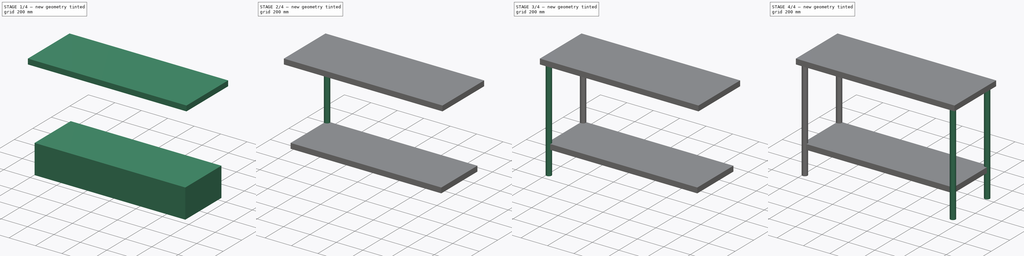
[diagram: build sequence overview — one tinted view per stage of 4, left to right]
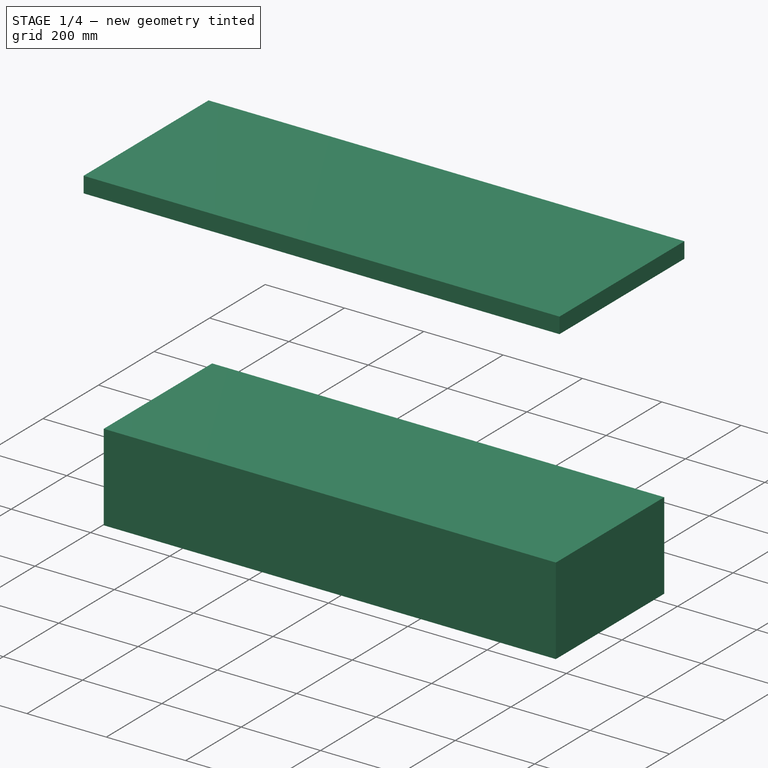
[diagram: stage 1 of 4 — iso view after this stage's code; geometry added in this stage tinted green]
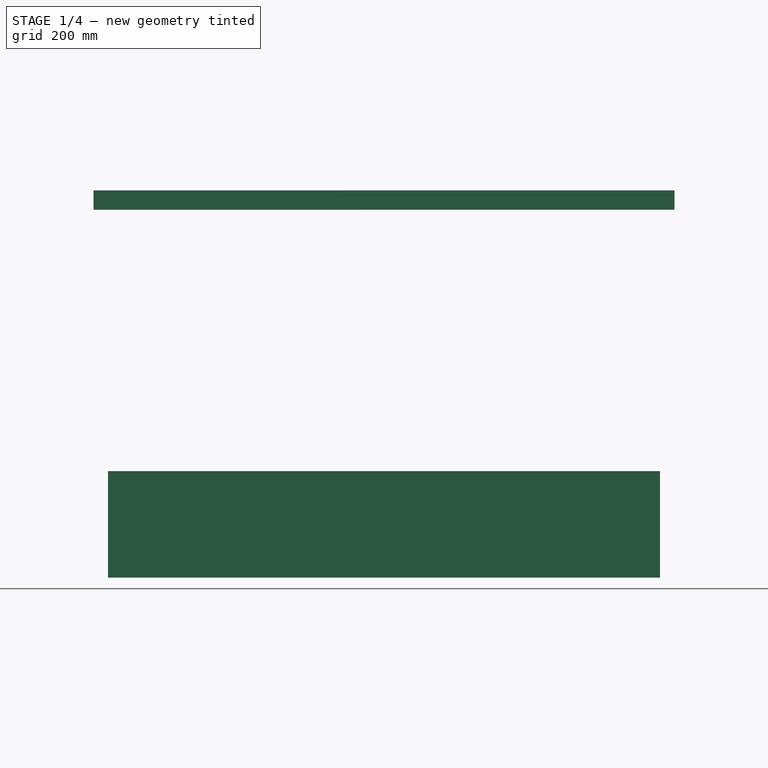
[diagram: stage 1 of 4 — front view after this stage's code; geometry added in this stage tinted green]
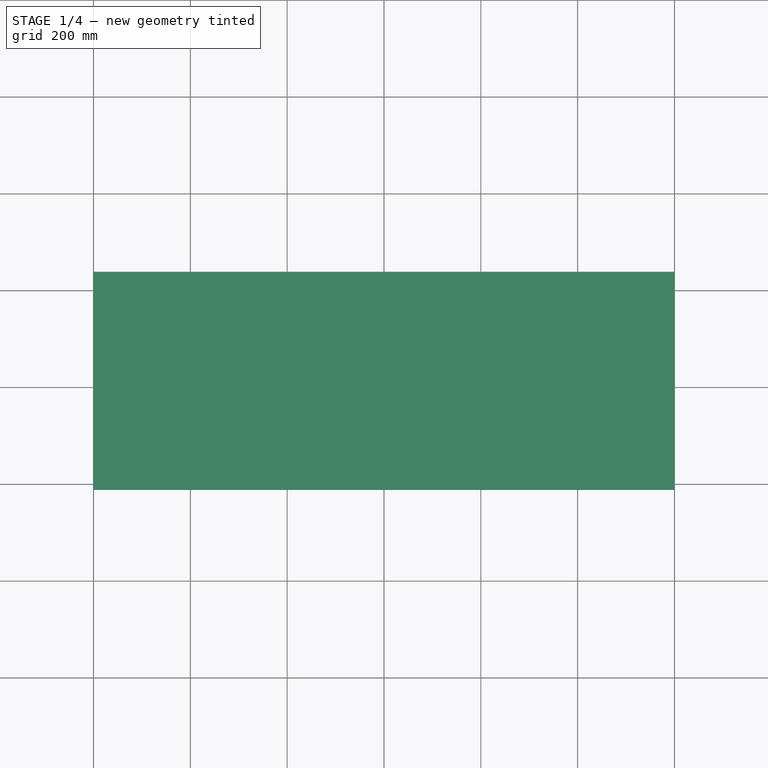
[diagram: stage 1 of 4 — top view after this stage's code; geometry added in this stage tinted green]
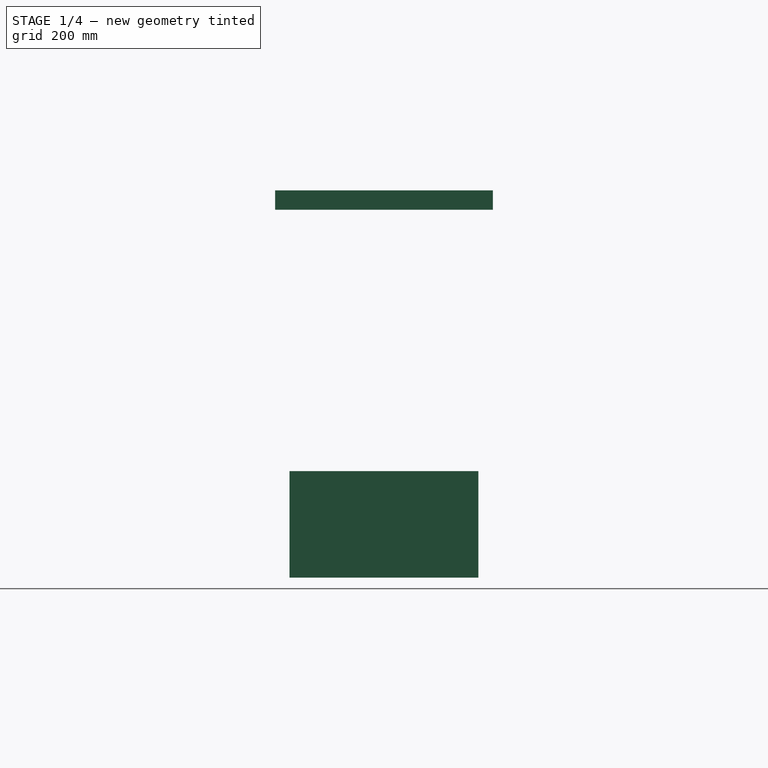
[diagram: stage 1 of 4 — right view after this stage's code; geometry added in this stage tinted green]
FCSTD DOCUMENT  (FreeCAD 1.0R39109 (Git))
Label: table02
License: All rights reserved
LicenseURL: https://en.wikipedia.org/wiki/All_rights_reserved
objects: Sketcher::SketchObject×8, PartDesign::Pad×6, PartDesign::Body×6, Part::FeaturePython×6, PartDesign::Pocket×2, App::Part×1
note: 52 computed .brp shape members not serialized (recipe doc carries the construction recipe); baked Part::Feature solids carry a one-line shape summary decoded from their .brp

FEATURE [PartDesign::Body] Body003
  AllowCompound = false
  Group = -> [Sketch003,Pad003]
  Origin = -> Origin003
  Tip = -> Pad003
FEATURE [Sketcher::SketchObject] Sketch004
  ArcFitTolerance = 1e-06
  AttachmentSupport = -> [XY_Plane004]
  FullyConstrained = false
  MakeInternals = false
  MapMode = 5
  sketch-geometry (20):
    g0: LineSegment [constr] StartX=-600 StartY=-225 StartZ=0 EndX=600 EndY=-225 EndZ=0
    g1: LineSegment [constr] StartX=600 StartY=-225 StartZ=0 EndX=600 EndY=225 EndZ=0
    g2: LineSegment [constr] StartX=600 StartY=225 StartZ=0 EndX=-600 EndY=225 EndZ=0
    g3: LineSegment [constr] StartX=-600 StartY=225 StartZ=0 EndX=-600 EndY=-225 EndZ=0
    g4: GeomPoint [constr] X=0 Y=0 Z=0
    g5: LineSegment [constr] StartX=-600 StartY=225 StartZ=0 EndX=-600 EndY=265 EndZ=0
    g6: LineSegment [constr] StartX=-600 StartY=265 StartZ=0 EndX=-560 EndY=265 EndZ=0
    g7: LineSegment [constr] StartX=-560 StartY=265 StartZ=0 EndX=-560 EndY=185 EndZ=0
    g8: LineSegment [constr] StartX=-600 StartY=-225 StartZ=0 EndX=-600 EndY=-265 EndZ=0
    g9: LineSegment [constr] StartX=-600 StartY=-265 StartZ=0 EndX=-560 EndY=-265 EndZ=0
    g10: LineSegment [constr] StartX=-560 StartY=-265 StartZ=0 EndX=-560 EndY=-185 EndZ=0
    g11: LineSegment [constr] StartX=-560 StartY=185 StartZ=0 EndX=-560 EndY=175 EndZ=0
    g12: LineSegment [constr] StartX=-560 StartY=175 StartZ=0 EndX=-570 EndY=175 EndZ=0
    g13: LineSegment [constr] StartX=-570 StartY=175 StartZ=0 EndX=-570 EndY=195 EndZ=0
    g14: LineSegment [constr] StartX=560 StartY=-185.063 StartZ=0 EndX=570 EndY=-185.063 EndZ=0
    g15: LineSegment [constr] StartX=570 StartY=-185.063 StartZ=0 EndX=570 EndY=-195.063 EndZ=0
    g16: LineSegment StartX=-570 StartY=195 StartZ=0 EndX=-570 EndY=-195.063 EndZ=0
    g17: LineSegment StartX=-570 StartY=-195.063 StartZ=0 EndX=570 EndY=-195.063 EndZ=0
    g18: LineSegment StartX=570 StartY=-195.063 StartZ=0 EndX=570 EndY=195 EndZ=0
    g19: LineSegment StartX=570 StartY=195 StartZ=0 EndX=-570 EndY=195 EndZ=0
  constraints (54):
    c: Coincident(g0,g1)
    c: Coincident(g1,g2)
    c: Coincident(g2,g3)
    c: Coincident(g3,g0)
    c: Horizontal(g0)
    c: Horizontal(g2)
    c: Vertical(g1)
    c: Vertical(g3)
    c: Symmetric(g2,g0,g4)
    c: Distance(g1,g3) = 1200
    c: Distance(g0,g2) = 450
    c: Coincident(g4,g-1)
    c: Coincident(g5,g2)
    c: Vertical(g5)
    c: DistanceY(g5,g5) = 40
    c: Distance(g6) = 40
    c: Coincident(g6,g5)
    c: Horizontal(g6)
    c: Distance(g7) = 80
    c: Coincident(g7,g6)
    c: Vertical(g7)
    c: Distance(g8) = 40
    c: Coincident(g8,g0)
    c: Vertical(g8)
    c: Distance(g9) = 40
    c: Coincident(g9,g8)
    c: Horizontal(g9)
    c: Distance(g10) = 80
    c: Coincident(g10,g9)
    c: Vertical(g10)
    c: Distance(g11) = 10
    c: Coincident(g11,g7)
    c: Vertical(g11)
    c: Distance(g12) = 10
    c: Coincident(g12,g11)
    c: Horizontal(g12)
    c: Distance(g13) = 20
    c: Coincident(g13,g12)
    c: Vertical(g13)
    c: Distance(g14) = 10
    c: Horizontal(g14)
    c: Distance(g15) = 10
    c: Coincident(g15,g14)
    c: Vertical(g15)
    c: Coincident(g16,g17)
    c: Coincident(g17,g18)
    c: Coincident(g18,g19)
    c: Coincident(g19,g16)
    c: Vertical(g16)
    c: Vertical(g18)
    c: Horizontal(g17)
    c: Horizontal(g19)
    c: Coincident(g16,g13)
    c: Coincident(g17,g15)
FEATURE [PartDesign::Pad] Pad004
  Direction = (0,0,1)
  Length = 220
  Length2 = 10
  Profile = -> Sketch004
  ReferenceAxis = -> Sketch004 [N_Axis]
  Refine = true
  Suppressed = false
  Type = 0
FEATURE [PartDesign::Body] Body004
  AllowCompound = false
  Group = -> [Sketch004,Pad004,Sketch005,Pocket]
  Origin = -> Origin004
  Tip = -> Pocket
FEATURE [Sketcher::SketchObject] Sketch006
  ArcFitTolerance = 1e-06
  AttachmentSupport = -> [XY_Plane005]
  FullyConstrained = false
  MakeInternals = false
  MapMode = 5
  sketch-geometry (16):
    g0: LineSegment StartX=-600 StartY=-225 StartZ=0 EndX=600 EndY=-225 EndZ=0
    g1: LineSegment StartX=600 StartY=-225 StartZ=0 EndX=600 EndY=225 EndZ=0
    g2: LineSegment StartX=600 StartY=225 StartZ=0 EndX=-600 EndY=225 EndZ=0
    g3: LineSegment StartX=-600 StartY=225 StartZ=0 EndX=-600 EndY=-225 EndZ=0
    g4: GeomPoint [constr] X=0 Y=0 Z=0
    g5: LineSegment [constr] StartX=-600 StartY=225 StartZ=0 EndX=-600 EndY=265 EndZ=0
    g6: LineSegment [constr] StartX=-600 StartY=265 StartZ=0 EndX=-560 EndY=265 EndZ=0
    g7: LineSegment [constr] StartX=-560 StartY=265 StartZ=0 EndX=-560 EndY=185 EndZ=0
    g8: LineSegment [constr] StartX=-600 StartY=-225 StartZ=0 EndX=-600 EndY=-265 EndZ=0
    g9: LineSegment [constr] StartX=-600 StartY=-265 StartZ=0 EndX=-560 EndY=-265 EndZ=0
    g10: LineSegment [constr] StartX=-560 StartY=-265 StartZ=0 EndX=-560 EndY=-185 EndZ=0
    g11: LineSegment [constr] StartX=-560 StartY=185 StartZ=0 EndX=-560 EndY=175 EndZ=0
    g12: LineSegment [constr] StartX=-560 StartY=175 StartZ=0 EndX=-570 EndY=175 EndZ=0
    g13: LineSegment [constr] StartX=-570 StartY=175 StartZ=0 EndX=-570 EndY=195 EndZ=0
    g14: LineSegment [constr] StartX=560 StartY=-185.063 StartZ=0 EndX=570 EndY=-185.063 EndZ=0
    g15: LineSegment [constr] StartX=570 StartY=-185.063 StartZ=0 EndX=570 EndY=-195.063 EndZ=0
  constraints (44):
    c: Coincident(g0,g1)
    c: Coincident(g1,g2)
    c: Coincident(g2,g3)
    c: Coincident(g3,g0)
    c: Horizontal(g0)
    c: Horizontal(g2)
    c: Vertical(g1)
    c: Vertical(g3)
    c: Symmetric(g2,g0,g4)
    c: Distance(g1,g3) = 1200
    c: Distance(g0,g2) = 450
    c: Coincident(g4,g-1)
    c: Coincident(g5,g2)
    c: Vertical(g5)
    c: DistanceY(g5,g5) = 40
    c: Distance(g6) = 40
    c: Coincident(g6,g5)
    c: Horizontal(g6)
    c: Distance(g7) = 80
    c: Coincident(g7,g6)
    c: Vertical(g7)
    c: Distance(g8) = 40
    c: Coincident(g8,g0)
    c: Vertical(g8)
    c: Distance(g9) = 40
    c: Coincident(g9,g8)
    c: Horizontal(g9)
    c: Distance(g10) = 80
    c: Coincident(g10,g9)
    c: Vertical(g10)
    c: Distance(g11) = 10
    c: Coincident(g11,g7)
    c: Vertical(g11)
    c: Distance(g12) = 10
    c: Coincident(g12,g11)
    c: Horizontal(g12)
    c: Distance(g13) = 20
    c: Coincident(g13,g12)
    c: Vertical(g13)
    c: Distance(g14) = 10
    c: Horizontal(g14)
    c: Distance(g15) = 10
    c: Coincident(g15,g14)
    c: Vertical(g15)
FEATURE [PartDesign::Pad] Pad005
  Direction = (0,0,1)
  Length = 800
  Length2 = 10
  Profile = -> Sketch006
  ReferenceAxis = -> Sketch006 [N_Axis]
  Refine = true
  Suppressed = false
  Type = 0
FEATURE [Sketcher::SketchObject] Sketch007
  ArcFitTolerance = 1e-06
  AttachmentSupport = -> [Pad005]
  ExternalGeometry = -> [Pad005]
  FullyConstrained = true
  MakeInternals = false
  MapMode = 5
  Placement = pos=(0,0,0) rot=(1,0,0;3.14159rad)
  sketch-geometry (4):
    g0: LineSegment StartX=-600 StartY=225 StartZ=0 EndX=-600 EndY=-225 EndZ=0
    g1: LineSegment StartX=-600 StartY=-225 StartZ=0 EndX=600 EndY=-225 EndZ=0
    g2: LineSegment StartX=600 StartY=-225 StartZ=0 EndX=600 EndY=225 EndZ=0
    g3: LineSegment StartX=600 StartY=225 StartZ=0 EndX=-600 EndY=225 EndZ=0
  constraints (10):
    c: Coincident(g0,g1)
    c: Coincident(g1,g2)
    c: Coincident(g2,g3)
    c: Coincident(g3,g0)
    c: Vertical(g0)
    c: Vertical(g2)
    c: Horizontal(g1)
    c: Horizontal(g3)
    c: Coincident(g0,g-3)
    c: Coincident(g1,g-4)
FEATURE [PartDesign::Pocket] Pocket001
  BaseFeature = -> Pad005
  Direction = (0,0,1)
  Length = 760
  Length2 = 5
  Profile = -> Sketch007
  ReferenceAxis = -> Sketch007 [N_Axis]
  Refine = true
  Suppressed = false
  Type = 0
FEATURE [Part::FeaturePython] Clone005  label="plate2_clone"  # Draft clone (typed FeaturePython)
  AttacherType = Attacher::AttachEngine3D
  Fuse = false
  Objects = -> [Body005]
  Scale = (1,1,1)
FEATURE [App::Part] Part  label="table02"
  Group = -> [Clone,Clone001,Clone002,Clone003,Clone004,Clone005]
  Origin = -> Origin006
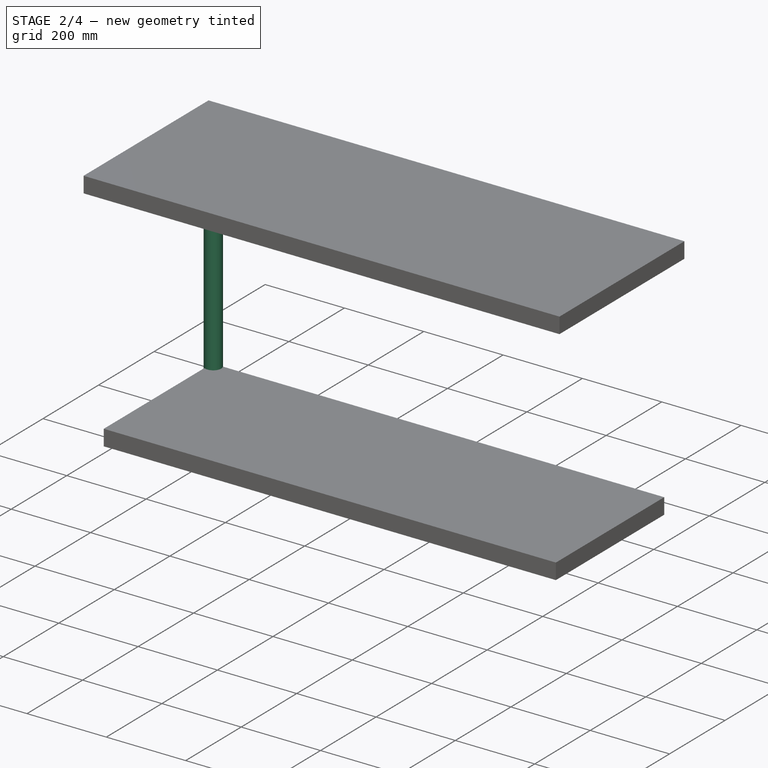
[diagram: stage 2 of 4 — iso view after this stage's code; geometry added in this stage tinted green]
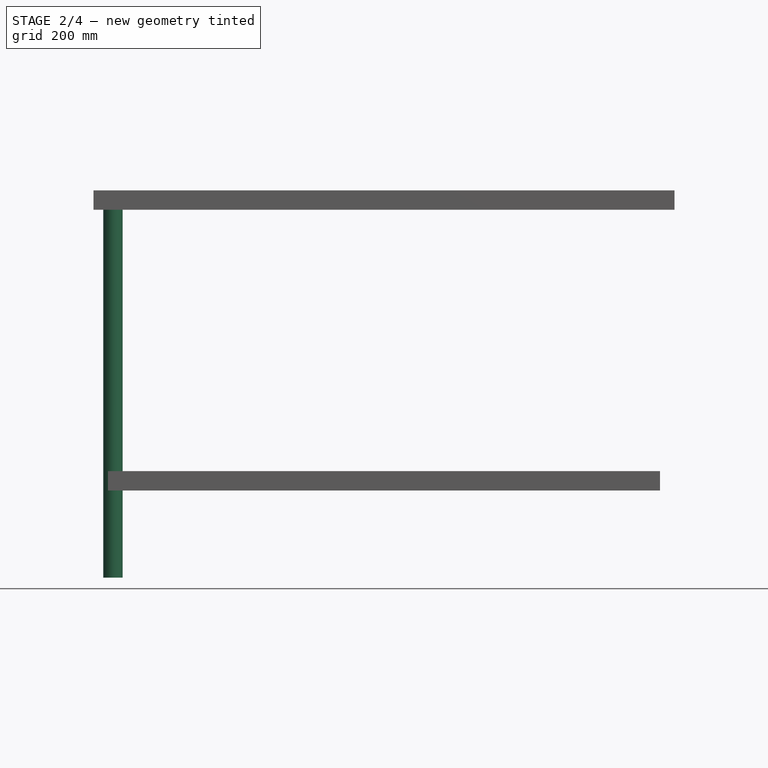
[diagram: stage 2 of 4 — front view after this stage's code; geometry added in this stage tinted green]
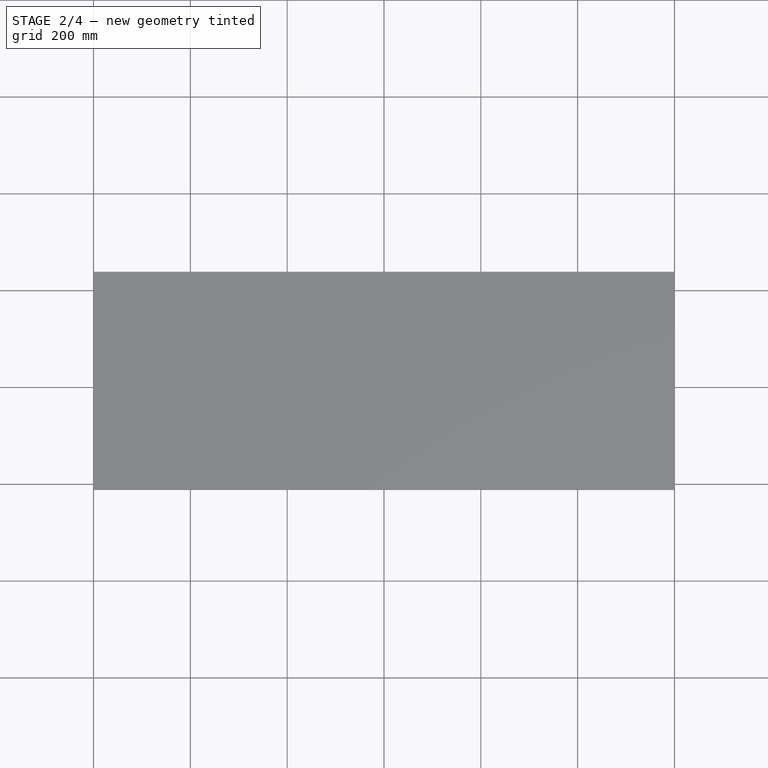
[diagram: stage 2 of 4 — top view after this stage's code; geometry added in this stage tinted green]
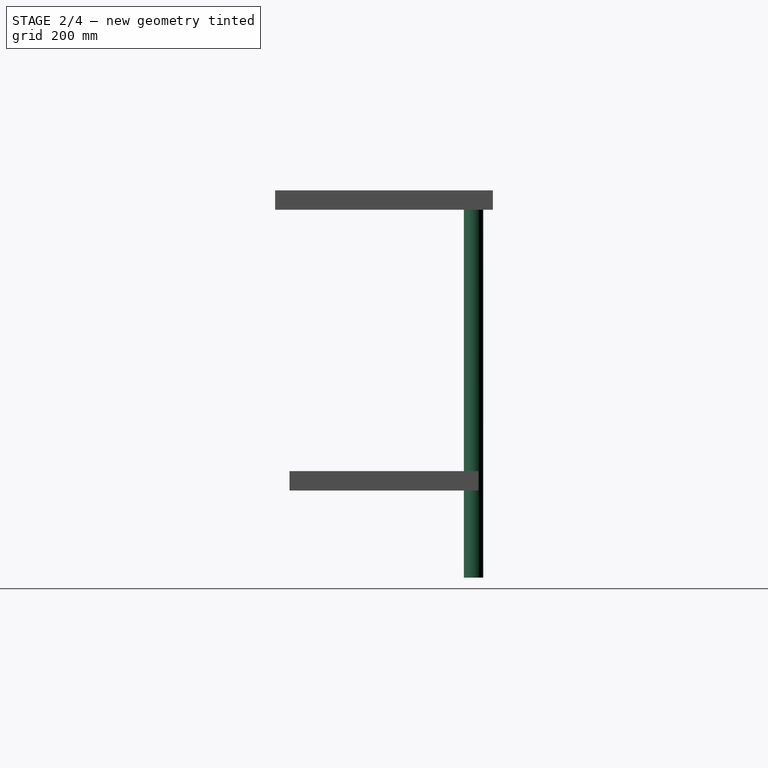
[diagram: stage 2 of 4 — right view after this stage's code; geometry added in this stage tinted green]
FEATURE [PartDesign::Body] Body002
  AllowCompound = false
  Group = -> [Sketch002,Pad002]
  Origin = -> Origin002
  Tip = -> Pad002
FEATURE [Sketcher::SketchObject] Sketch003
  ArcFitTolerance = 1e-06
  AttachmentSupport = -> [XY_Plane003]
  FullyConstrained = false
  MakeInternals = false
  MapMode = 5
  sketch-geometry (21):
    g0: LineSegment [constr] StartX=-600 StartY=-225 StartZ=0 EndX=600 EndY=-225 EndZ=0
    g1: LineSegment [constr] StartX=600 StartY=-225 StartZ=0 EndX=600 EndY=225 EndZ=0
    g2: LineSegment [constr] StartX=600 StartY=225 StartZ=0 EndX=-600 EndY=225 EndZ=0
    g3: LineSegment [constr] StartX=-600 StartY=225 StartZ=0 EndX=-600 EndY=-225 EndZ=0
    g4: GeomPoint [constr] X=0 Y=0 Z=0
    g5: LineSegment [constr] StartX=-600 StartY=225 StartZ=0 EndX=-600 EndY=265 EndZ=0
    g6: LineSegment [constr] StartX=-600 StartY=265 StartZ=0 EndX=-560 EndY=265 EndZ=0
    g7: LineSegment [constr] StartX=-560 StartY=265 StartZ=0 EndX=-560 EndY=185 EndZ=0
    g8: Circle CenterX=-560 CenterY=185 CenterZ=0 NormalX=0 NormalY=0 NormalZ=1 AngleXU=0 Radius=20
    g9: LineSegment [constr] StartX=-600 StartY=-225 StartZ=0 EndX=-600 EndY=-265 EndZ=0
    g10: LineSegment [constr] StartX=-600 StartY=-265 StartZ=0 EndX=-560 EndY=-265 EndZ=0
    g11: LineSegment [constr] StartX=-560 StartY=-265 StartZ=0 EndX=-560 EndY=-185 EndZ=0
    g12: LineSegment [constr] StartX=-560 StartY=185 StartZ=0 EndX=-560 EndY=175 EndZ=0
    g13: LineSegment [constr] StartX=-560 StartY=175 StartZ=0 EndX=-570 EndY=175 EndZ=0
    g14: LineSegment [constr] StartX=-570 StartY=175 StartZ=0 EndX=-570 EndY=195 EndZ=0
    g15: LineSegment [constr] StartX=560 StartY=-185.063 StartZ=0 EndX=570 EndY=-185.063 EndZ=0
    g16: LineSegment [constr] StartX=570 StartY=-185.063 StartZ=0 EndX=570 EndY=-195.063 EndZ=0
    g17: LineSegment [constr] StartX=-570 StartY=195 StartZ=0 EndX=-570 EndY=-195.063 EndZ=0
    g18: LineSegment [constr] StartX=-570 StartY=-195.063 StartZ=0 EndX=570 EndY=-195.063 EndZ=0
    g19: LineSegment [constr] StartX=570 StartY=-195.063 StartZ=0 EndX=570 EndY=195 EndZ=0
    g20: LineSegment [constr] StartX=570 StartY=195 StartZ=0 EndX=-570 EndY=195 EndZ=0
  constraints (56):
    c: Coincident(g0,g1)
    c: Coincident(g1,g2)
    c: Coincident(g2,g3)
    c: Coincident(g3,g0)
    c: Horizontal(g0)
    c: Horizontal(g2)
    c: Vertical(g1)
    c: Vertical(g3)
    c: Symmetric(g2,g0,g4)
    c: Distance(g1,g3) = 1200
    c: Distance(g0,g2) = 450
    c: Coincident(g4,g-1)
    c: Coincident(g5,g2)
    c: Vertical(g5)
    c: DistanceY(g5,g5) = 40
    c: Distance(g6) = 40
    c: Coincident(g6,g5)
    c: Horizontal(g6)
    c: Distance(g7) = 80
    c: Coincident(g7,g6)
    c: Vertical(g7)
    c: Diameter(g8) = 40
    c: Coincident(g8,g7)
    c: Distance(g9) = 40
    c: Coincident(g9,g0)
    c: Vertical(g9)
    c: Distance(g10) = 40
    c: Coincident(g10,g9)
    c: Horizontal(g10)
    c: Distance(g11) = 80
    c: Coincident(g11,g10)
    c: Vertical(g11)
    c: Distance(g12) = 10
    c: Coincident(g12,g7)
    c: Vertical(g12)
    c: Distance(g13) = 10
    c: Coincident(g13,g12)
    c: Horizontal(g13)
    c: Distance(g14) = 20
    c: Coincident(g14,g13)
    c: Vertical(g14)
    c: Distance(g15) = 10
    c: Horizontal(g15)
    c: Distance(g16) = 10
    c: Coincident(g16,g15)
    c: Vertical(g16)
    c: Coincident(g17,g18)
    c: Coincident(g18,g19)
    c: Coincident(g19,g20)
    c: Coincident(g20,g17)
    c: Vertical(g17)
    c: Vertical(g19)
    c: Horizontal(g18)
    c: Horizontal(g20)
    c: Coincident(g17,g14)
    c: Coincident(g18,g16)
FEATURE [PartDesign::Pad] Pad003
  Direction = (0,0,1)
  Length = 780
  Length2 = 10
  Profile = -> Sketch003
  ReferenceAxis = -> Sketch003 [N_Axis]
  Refine = true
  Suppressed = false
  Type = 0
FEATURE [Sketcher::SketchObject] Sketch005
  ArcFitTolerance = 1e-06
  AttachmentSupport = -> [Pad004]
  ExternalGeometry = -> [Pad004]
  FullyConstrained = true
  MakeInternals = false
  MapMode = 5
  Placement = pos=(0,0,0) rot=(1,0,0;3.14159rad)
  sketch-geometry (4):
    g0: LineSegment StartX=-570 StartY=195.063 StartZ=0 EndX=-570 EndY=-195 EndZ=0
    g1: LineSegment StartX=-570 StartY=-195 StartZ=0 EndX=570 EndY=-195 EndZ=0
    g2: LineSegment StartX=570 StartY=-195 StartZ=0 EndX=570 EndY=195.063 EndZ=0
    g3: LineSegment StartX=570 StartY=195.063 StartZ=0 EndX=-570 EndY=195.063 EndZ=0
  constraints (10):
    c: Coincident(g0,g1)
    c: Coincident(g1,g2)
    c: Coincident(g2,g3)
    c: Coincident(g3,g0)
    c: Vertical(g0)
    c: Vertical(g2)
    c: Horizontal(g1)
    c: Horizontal(g3)
    c: Coincident(g0,g-3)
    c: Coincident(g1,g-4)
FEATURE [PartDesign::Pocket] Pocket
  BaseFeature = -> Pad004
  Direction = (0,0,1)
  Length = 180
  Length2 = 5
  Profile = -> Sketch005
  ReferenceAxis = -> Sketch005 [N_Axis]
  Refine = true
  Suppressed = false
  Type = 0
FEATURE [Part::FeaturePython] Clone004  label="plate1_clone"  # Draft clone (typed FeaturePython)
  AttacherType = Attacher::AttachEngine3D
  Fuse = false
  Objects = -> [Body004]
  Scale = (1,1,1)
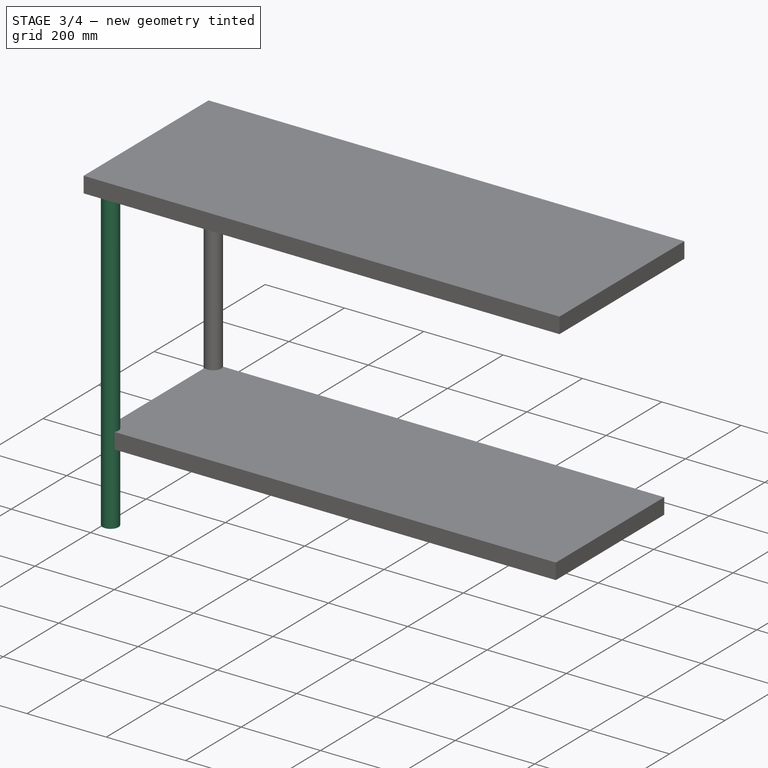
[diagram: stage 3 of 4 — iso view after this stage's code; geometry added in this stage tinted green]
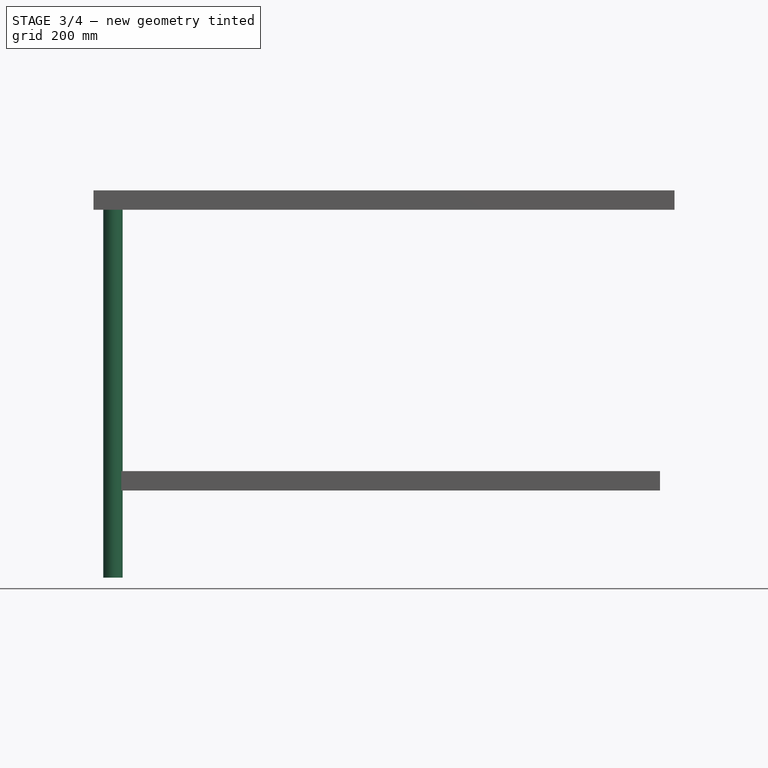
[diagram: stage 3 of 4 — front view after this stage's code; geometry added in this stage tinted green]
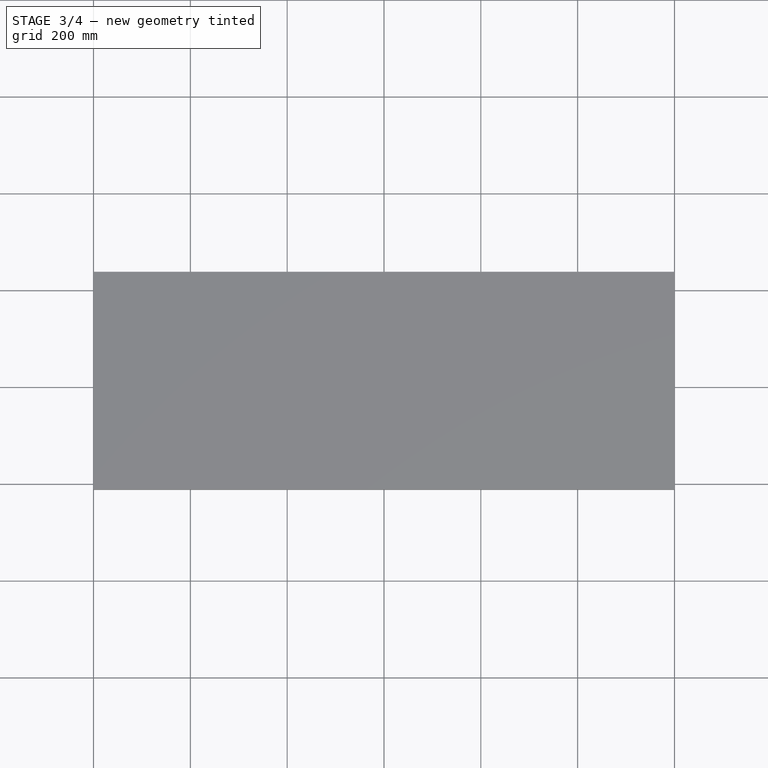
[diagram: stage 3 of 4 — top view after this stage's code; geometry added in this stage tinted green]
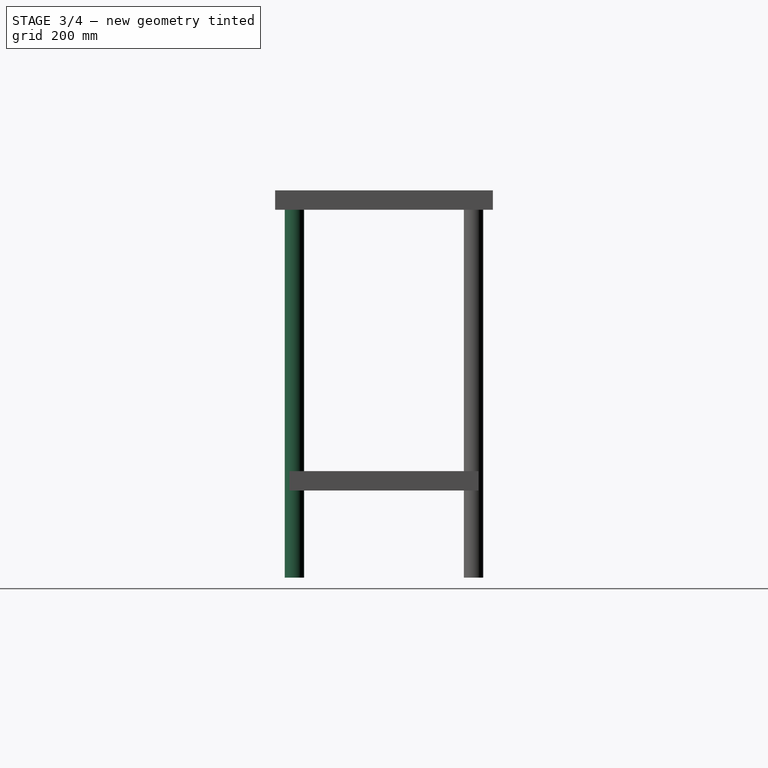
[diagram: stage 3 of 4 — right view after this stage's code; geometry added in this stage tinted green]
FEATURE [PartDesign::Body] Body001
  AllowCompound = false
  Group = -> [Sketch001,Pad001]
  Origin = -> Origin001
  Tip = -> Pad001
FEATURE [Sketcher::SketchObject] Sketch002
  ArcFitTolerance = 1e-06
  AttachmentSupport = -> [XY_Plane002]
  FullyConstrained = false
  MakeInternals = false
  MapMode = 5
  sketch-geometry (22):
    g0: LineSegment [constr] StartX=-600 StartY=-225 StartZ=0 EndX=600 EndY=-225 EndZ=0
    g1: LineSegment [constr] StartX=600 StartY=-225 StartZ=0 EndX=600 EndY=225 EndZ=0
    g2: LineSegment [constr] StartX=600 StartY=225 StartZ=0 EndX=-600 EndY=225 EndZ=0
    g3: LineSegment [constr] StartX=-600 StartY=225 StartZ=0 EndX=-600 EndY=-225 EndZ=0
    g4: GeomPoint [constr] X=0 Y=0 Z=0
    g5: LineSegment [constr] StartX=-600 StartY=225 StartZ=0 EndX=-600 EndY=265 EndZ=0
    g6: LineSegment [constr] StartX=-600 StartY=265 StartZ=0 EndX=-560 EndY=265 EndZ=0
    g7: LineSegment [constr] StartX=-560 StartY=265 StartZ=0 EndX=-560 EndY=185 EndZ=0
    g8: Circle CenterX=-560 CenterY=185 CenterZ=0 NormalX=0 NormalY=0 NormalZ=1 AngleXU=0 Radius=20
    g9: LineSegment [constr] StartX=-600 StartY=-225 StartZ=0 EndX=-600 EndY=-265 EndZ=0
    g10: LineSegment [constr] StartX=-600 StartY=-265 StartZ=0 EndX=-560 EndY=-265 EndZ=0
    g11: LineSegment [constr] StartX=-560 StartY=-265 StartZ=0 EndX=-560 EndY=-185 EndZ=0
    g12: Circle CenterX=-560 CenterY=-185 CenterZ=0 NormalX=0 NormalY=0 NormalZ=1 AngleXU=0 Radius=20
    g13: LineSegment [constr] StartX=-560 StartY=185 StartZ=0 EndX=-560 EndY=175 EndZ=0
    g14: LineSegment [constr] StartX=-560 StartY=175 StartZ=0 EndX=-570 EndY=175 EndZ=0
    g15: LineSegment [constr] StartX=-570 StartY=175 StartZ=0 EndX=-570 EndY=195 EndZ=0
    g16: LineSegment [constr] StartX=560 StartY=-185.063 StartZ=0 EndX=570 EndY=-185.063 EndZ=0
    g17: LineSegment [constr] StartX=570 StartY=-185.063 StartZ=0 EndX=570 EndY=-195.063 EndZ=0
    g18: LineSegment [constr] StartX=-570 StartY=195 StartZ=0 EndX=-570 EndY=-195.063 EndZ=0
    g19: LineSegment [constr] StartX=-570 StartY=-195.063 StartZ=0 EndX=570 EndY=-195.063 EndZ=0
    g20: LineSegment [constr] StartX=570 StartY=-195.063 StartZ=0 EndX=570 EndY=195 EndZ=0
    g21: LineSegment [constr] StartX=570 StartY=195 StartZ=0 EndX=-570 EndY=195 EndZ=0
  constraints (58):
    c: Coincident(g0,g1)
    c: Coincident(g1,g2)
    c: Coincident(g2,g3)
    c: Coincident(g3,g0)
    c: Horizontal(g0)
    c: Horizontal(g2)
    c: Vertical(g1)
    c: Vertical(g3)
    c: Symmetric(g2,g0,g4)
    c: Distance(g1,g3) = 1200
    c: Distance(g0,g2) = 450
    c: Coincident(g4,g-1)
    c: Coincident(g5,g2)
    c: Vertical(g5)
    c: DistanceY(g5,g5) = 40
    c: Distance(g6) = 40
    c: Coincident(g6,g5)
    c: Horizontal(g6)
    c: Distance(g7) = 80
    c: Coincident(g7,g6)
    c: Vertical(g7)
    c: Diameter(g8) = 40
    c: Coincident(g8,g7)
    c: Distance(g9) = 40
    c: Coincident(g9,g0)
    c: Vertical(g9)
    c: Distance(g10) = 40
    c: Coincident(g10,g9)
    c: Horizontal(g10)
    c: Distance(g11) = 80
    c: Coincident(g11,g10)
    c: Vertical(g11)
    c: Diameter(g12) = 40
    c: Coincident(g12,g11)
    c: Distance(g13) = 10
    c: Coincident(g13,g7)
    c: Vertical(g13)
    c: Distance(g14) = 10
    c: Coincident(g14,g13)
    c: Horizontal(g14)
    c: Distance(g15) = 20
    c: Coincident(g15,g14)
    c: Vertical(g15)
    c: Distance(g16) = 10
    c: Horizontal(g16)
    c: Distance(g17) = 10
    c: Coincident(g17,g16)
    c: Vertical(g17)
    c: Coincident(g18,g19)
    c: Coincident(g19,g20)
    c: Coincident(g20,g21)
    c: Coincident(g21,g18)
    c: Vertical(g18)
    c: Vertical(g20)
    c: Horizontal(g19)
    c: Horizontal(g21)
    c: Coincident(g18,g15)
    c: Coincident(g19,g17)
FEATURE [PartDesign::Pad] Pad002
  Direction = (0,0,1)
  Length = 780
  Length2 = 10
  Profile = -> Sketch002
  ReferenceAxis = -> Sketch002 [N_Axis]
  Refine = true
  Suppressed = false
  Type = 0
FEATURE [Part::FeaturePython] Clone002  label="foot3_clone"  # Draft clone (typed FeaturePython)
  AttacherType = Attacher::AttachEngine3D
  Fuse = false
  Objects = -> [Body002]
  Scale = (1,1,1)
FEATURE [Part::FeaturePython] Clone003  label="foot4_clone"  # Draft clone (typed FeaturePython)
  AttacherType = Attacher::AttachEngine3D
  Fuse = false
  Objects = -> [Body003]
  Scale = (1,1,1)
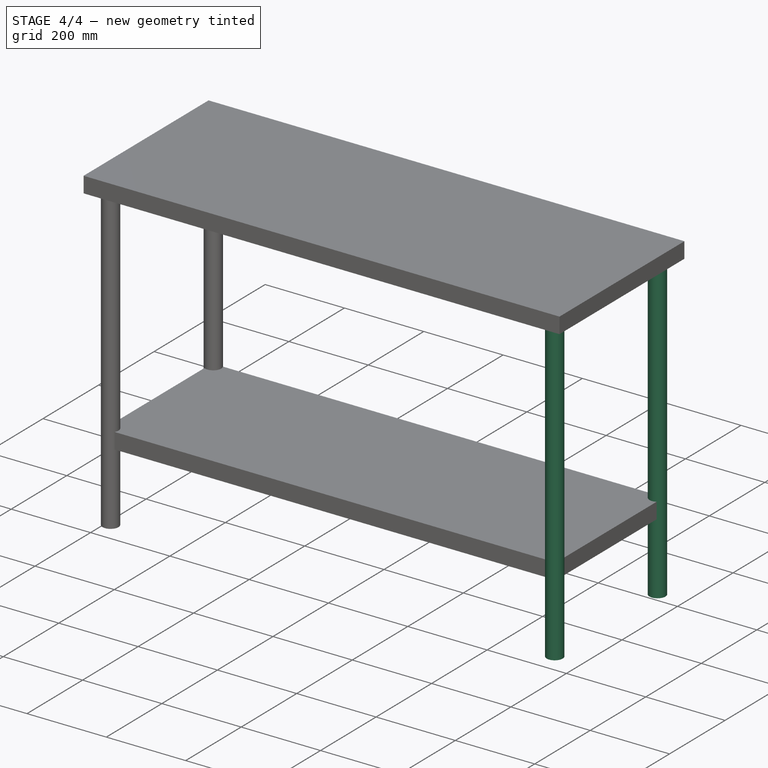
[diagram: stage 4 of 4 — iso view after this stage's code; geometry added in this stage tinted green]
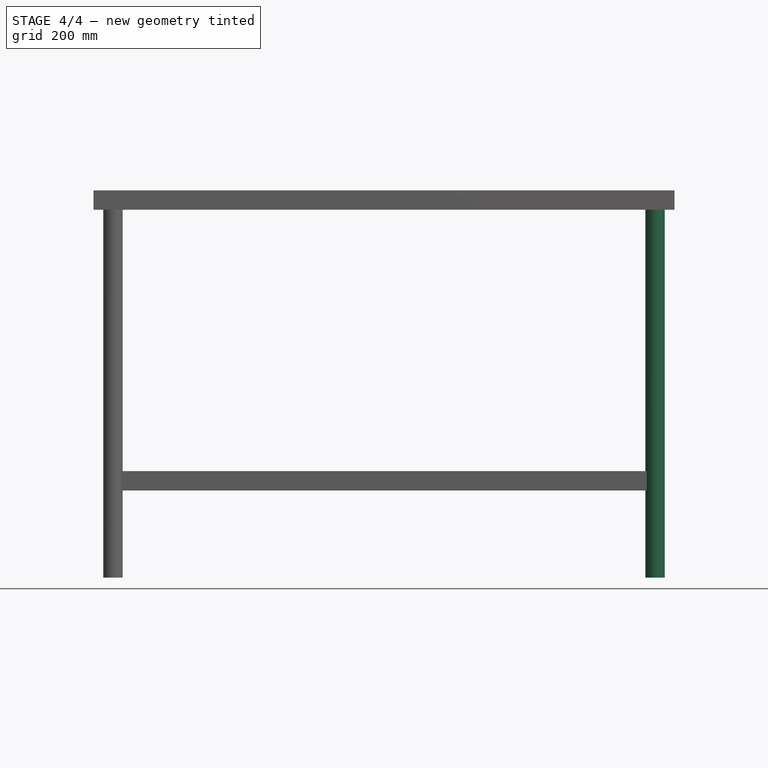
[diagram: stage 4 of 4 — front view after this stage's code; geometry added in this stage tinted green]
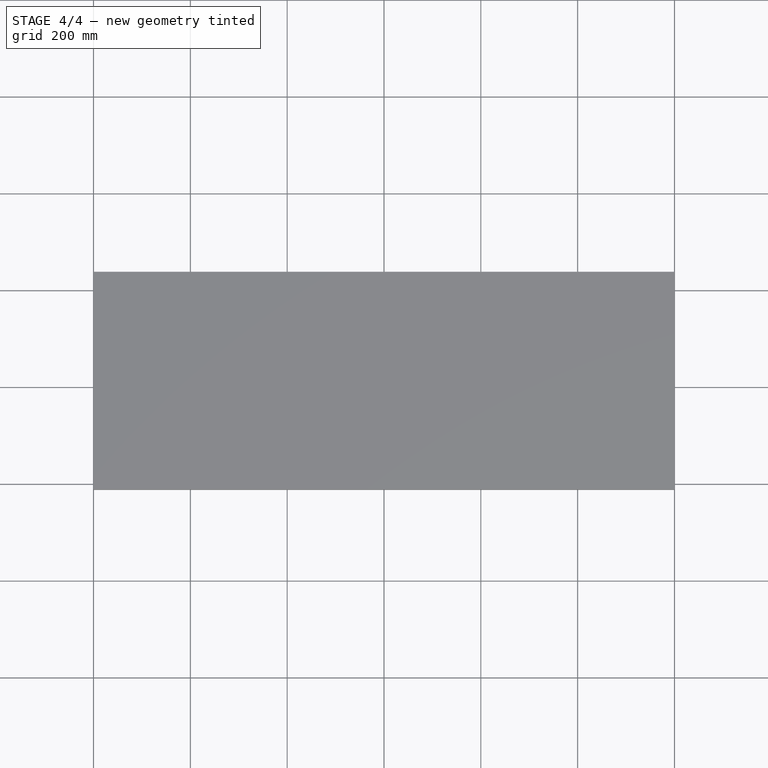
[diagram: stage 4 of 4 — top view after this stage's code; geometry added in this stage tinted green]
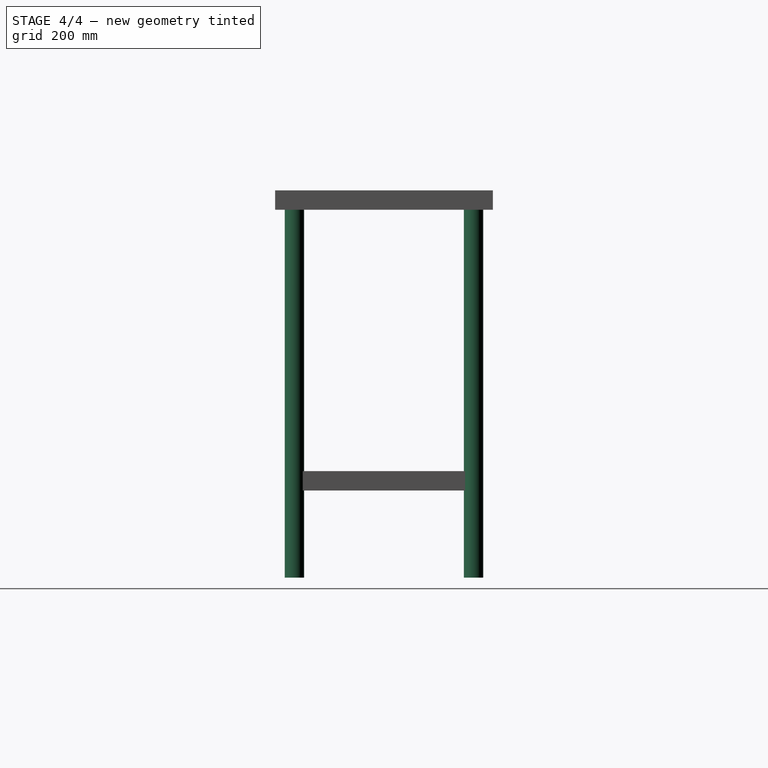
[diagram: stage 4 of 4 — right view after this stage's code; geometry added in this stage tinted green]
FEATURE [Sketcher::SketchObject] Sketch
  ArcFitTolerance = 1e-06
  AttachmentSupport = -> [XY_Plane]
  FullyConstrained = false
  MakeInternals = false
  MapMode = 5
  sketch-geometry (24):
    g0: LineSegment [constr] StartX=-600 StartY=-225 StartZ=0 EndX=600 EndY=-225 EndZ=0
    g1: LineSegment [constr] StartX=600 StartY=-225 StartZ=0 EndX=600 EndY=225 EndZ=0
    g2: LineSegment [constr] StartX=600 StartY=225 StartZ=0 EndX=-600 EndY=225 EndZ=0
    g3: LineSegment [constr] StartX=-600 StartY=225 StartZ=0 EndX=-600 EndY=-225 EndZ=0
    g4: GeomPoint [constr] X=0 Y=0 Z=0
    g5: LineSegment [constr] StartX=-600 StartY=225 StartZ=0 EndX=-600 EndY=265 EndZ=0
    g6: LineSegment [constr] StartX=-600 StartY=265 StartZ=0 EndX=-560 EndY=265 EndZ=0
    g7: LineSegment [constr] StartX=-560 StartY=265 StartZ=0 EndX=-560 EndY=185 EndZ=0
    g8: Circle CenterX=-560 CenterY=185 CenterZ=0 NormalX=0 NormalY=0 NormalZ=1 AngleXU=0 Radius=20
    g9: LineSegment [constr] StartX=-600 StartY=-225 StartZ=0 EndX=-600 EndY=-265 EndZ=0
    g10: LineSegment [constr] StartX=-600 StartY=-265 StartZ=0 EndX=-560 EndY=-265 EndZ=0
    g11: LineSegment [constr] StartX=-560 StartY=-265 StartZ=0 EndX=-560 EndY=-185 EndZ=0
    g12: Circle CenterX=-560 CenterY=-185 CenterZ=0 NormalX=0 NormalY=0 NormalZ=1 AngleXU=0 Radius=20
    g13: Circle CenterX=560 CenterY=185 CenterZ=0 NormalX=0 NormalY=0 NormalZ=1 AngleXU=0 Radius=20
    g14: Circle CenterX=560 CenterY=-185.063 CenterZ=0 NormalX=0 NormalY=0 NormalZ=1 AngleXU=0 Radius=20
    g15: LineSegment [constr] StartX=-560 StartY=185 StartZ=0 EndX=-560 EndY=175 EndZ=0
    g16: LineSegment [constr] StartX=-560 StartY=175 StartZ=0 EndX=-570 EndY=175 EndZ=0
    g17: LineSegment [constr] StartX=-570 StartY=175 StartZ=0 EndX=-570 EndY=195 EndZ=0
    g18: LineSegment [constr] StartX=560 StartY=-185.063 StartZ=0 EndX=570 EndY=-185.063 EndZ=0
    g19: LineSegment [constr] StartX=570 StartY=-185.063 StartZ=0 EndX=570 EndY=-195.063 EndZ=0
    g20: LineSegment [constr] StartX=-570 StartY=195 StartZ=0 EndX=-570 EndY=-195.063 EndZ=0
    g21: LineSegment [constr] StartX=-570 StartY=-195.063 StartZ=0 EndX=570 EndY=-195.063 EndZ=0
    g22: LineSegment [constr] StartX=570 StartY=-195.063 StartZ=0 EndX=570 EndY=195 EndZ=0
    g23: LineSegment [constr] StartX=570 StartY=195 StartZ=0 EndX=-570 EndY=195 EndZ=0
  constraints (61):
    c: Coincident(g0,g1)
    c: Coincident(g1,g2)
    c: Coincident(g2,g3)
    c: Coincident(g3,g0)
    c: Horizontal(g0)
    c: Horizontal(g2)
    c: Vertical(g1)
    c: Vertical(g3)
    c: Symmetric(g2,g0,g4)
    c: Distance(g1,g3) = 1200
    c: Distance(g0,g2) = 450
    c: Coincident(g4,g-1)
    c: Coincident(g5,g2)
    c: Vertical(g5)
    c: DistanceY(g5,g5) = 40
    c: Distance(g6) = 40
    c: Coincident(g6,g5)
    c: Horizontal(g6)
    c: Distance(g7) = 80
    c: Coincident(g7,g6)
    c: Vertical(g7)
    c: Diameter(g8) = 40
    c: Coincident(g8,g7)
    c: Distance(g9) = 40
    c: Coincident(g9,g0)
    c: Vertical(g9)
    c: Distance(g10) = 40
    c: Coincident(g10,g9)
    c: Horizontal(g10)
    c: Distance(g11) = 80
    c: Coincident(g11,g10)
    c: Vertical(g11)
    c: Diameter(g12) = 40
    c: Coincident(g12,g11)
    c: Diameter(g13) = 40
    c: Diameter(g14) = 40
    c: Distance(g15) = 10
    c: Coincident(g15,g7)
    c: Vertical(g15)
    c: Distance(g16) = 10
    c: Coincident(g16,g15)
    c: Horizontal(g16)
    c: Distance(g17) = 20
    c: Coincident(g17,g16)
    c: Vertical(g17)
    c: Distance(g18) = 10
    c: Coincident(g18,g14)
    c: Horizontal(g18)
    c: Distance(g19) = 10
    c: Coincident(g19,g18)
    c: Vertical(g19)
    c: Coincident(g20,g21)
    c: Coincident(g21,g22)
    c: Coincident(g22,g23)
    c: Coincident(g23,g20)
    c: Vertical(g20)
    c: Vertical(g22)
    c: Horizontal(g21)
    c: Horizontal(g23)
    c: Coincident(g20,g17)
    c: Coincident(g21,g19)
FEATURE [PartDesign::Pad] Pad
  Direction = (0,0,1)
  Length = 780
  Length2 = 10
  Profile = -> Sketch
  ReferenceAxis = -> Sketch [N_Axis]
  Refine = true
  Suppressed = false
  Type = 0
FEATURE [PartDesign::Body] Body
  AllowCompound = false
  Group = -> [Sketch,Pad]
  Origin = -> Origin
  Tip = -> Pad
FEATURE [Sketcher::SketchObject] Sketch001
  ArcFitTolerance = 1e-06
  AttachmentSupport = -> [XY_Plane001]
  FullyConstrained = false
  MakeInternals = false
  MapMode = 5
  sketch-geometry (21):
    g0: LineSegment [constr] StartX=-600 StartY=-225 StartZ=0 EndX=600 EndY=-225 EndZ=0
    g1: LineSegment [constr] StartX=600 StartY=-225 StartZ=0 EndX=600 EndY=225 EndZ=0
    g2: LineSegment [constr] StartX=600 StartY=225 StartZ=0 EndX=-600 EndY=225 EndZ=0
    g3: LineSegment [constr] StartX=-600 StartY=225 StartZ=0 EndX=-600 EndY=-225 EndZ=0
    g4: GeomPoint [constr] X=0 Y=0 Z=0
    g5: LineSegment [constr] StartX=-600 StartY=225 StartZ=0 EndX=-600 EndY=265 EndZ=0
    g6: LineSegment [constr] StartX=-600 StartY=265 StartZ=0 EndX=-560 EndY=265 EndZ=0
    g7: LineSegment [constr] StartX=-560 StartY=265 StartZ=0 EndX=-560 EndY=185 EndZ=0
    g8: Circle CenterX=-560 CenterY=185 CenterZ=0 NormalX=0 NormalY=0 NormalZ=1 AngleXU=0 Radius=20
    g9: LineSegment [constr] StartX=-600 StartY=-225 StartZ=0 EndX=-600 EndY=-265 EndZ=0
    g10: LineSegment [constr] StartX=-600 StartY=-265 StartZ=0 EndX=-560 EndY=-265 EndZ=0
    g11: LineSegment [constr] StartX=-560 StartY=-265 StartZ=0 EndX=-560 EndY=-185 EndZ=0
    g12: Circle CenterX=-560 CenterY=-185 CenterZ=0 NormalX=0 NormalY=0 NormalZ=1 AngleXU=0 Radius=20
    g13: Circle CenterX=560 CenterY=185 CenterZ=0 NormalX=0 NormalY=0 NormalZ=1 AngleXU=0 Radius=20
    g14: LineSegment [constr] StartX=-560 StartY=185 StartZ=0 EndX=-560 EndY=175 EndZ=0
    g15: LineSegment [constr] StartX=-560 StartY=175 StartZ=0 EndX=-570 EndY=175 EndZ=0
    g16: LineSegment [constr] StartX=-570 StartY=175 StartZ=0 EndX=-570 EndY=195 EndZ=0
    g17: LineSegment [constr] StartX=-570 StartY=195 StartZ=0 EndX=-570 EndY=-195.063 EndZ=0
    g18: LineSegment [constr] StartX=-570 StartY=-195.063 StartZ=0 EndX=570 EndY=-195.063 EndZ=0
    g19: LineSegment [constr] StartX=570 StartY=-195.063 StartZ=0 EndX=570 EndY=195 EndZ=0
    g20: LineSegment [constr] StartX=570 StartY=195 StartZ=0 EndX=-570 EndY=195 EndZ=0
  constraints (52):
    c: Coincident(g0,g1)
    c: Coincident(g1,g2)
    c: Coincident(g2,g3)
    c: Coincident(g3,g0)
    c: Horizontal(g0)
    c: Horizontal(g2)
    c: Vertical(g1)
    c: Vertical(g3)
    c: Symmetric(g2,g0,g4)
    c: Distance(g1,g3) = 1200
    c: Distance(g0,g2) = 450
    c: Coincident(g4,g-1)
    c: Coincident(g5,g2)
    c: Vertical(g5)
    c: DistanceY(g5,g5) = 40
    c: Distance(g6) = 40
    c: Coincident(g6,g5)
    c: Horizontal(g6)
    c: Distance(g7) = 80
    c: Coincident(g7,g6)
    c: Vertical(g7)
    c: Diameter(g8) = 40
    c: Coincident(g8,g7)
    c: Distance(g9) = 40
    c: Coincident(g9,g0)
    c: Vertical(g9)
    c: Distance(g10) = 40
    c: Coincident(g10,g9)
    c: Horizontal(g10)
    c: Distance(g11) = 80
    c: Coincident(g11,g10)
    c: Vertical(g11)
    c: Diameter(g12) = 40
    c: Coincident(g12,g11)
    c: Diameter(g13) = 40
    c: Distance(g14) = 10
    c: Coincident(g14,g7)
    c: Vertical(g14)
    c: Distance(g15) = 10
    c: Coincident(g15,g14)
    c: Horizontal(g15)
    c: Distance(g16) = 20
    c: Coincident(g16,g15)
    c: Vertical(g16)
    c: Coincident(g17,g18)
    c: Coincident(g19,g20)
    c: Coincident(g20,g17)
    c: Vertical(g17)
    c: Vertical(g19)
    c: Horizontal(g18)
    c: Horizontal(g20)
    c: Coincident(g17,g16)
FEATURE [PartDesign::Pad] Pad001
  Direction = (0,0,1)
  Length = 780
  Length2 = 10
  Profile = -> Sketch001
  ReferenceAxis = -> Sketch001 [N_Axis]
  Refine = true
  Suppressed = false
  Type = 0
FEATURE [PartDesign::Body] Body005
  AllowCompound = false
  Group = -> [Sketch006,Pad005,Sketch007,Pocket001]
  Origin = -> Origin005
  Tip = -> Pocket001
FEATURE [Part::FeaturePython] Clone  label="foot1_clone"  # Draft clone (typed FeaturePython)
  AttacherType = Attacher::AttachEngine3D
  Fuse = false
  Objects = -> [Body]
  Scale = (1,1,1)
FEATURE [Part::FeaturePython] Clone001  label="foot2_clone"  # Draft clone (typed FeaturePython)
  AttacherType = Attacher::AttachEngine3D
  Fuse = false
  Objects = -> [Body001]
  Scale = (1,1,1)
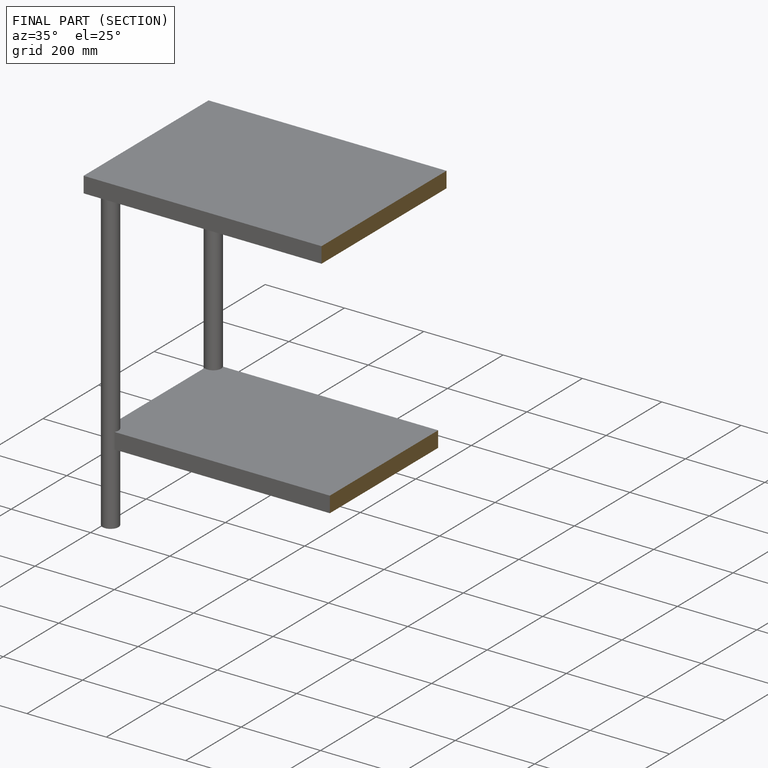
[diagram: finished part — half-section view (interior)]
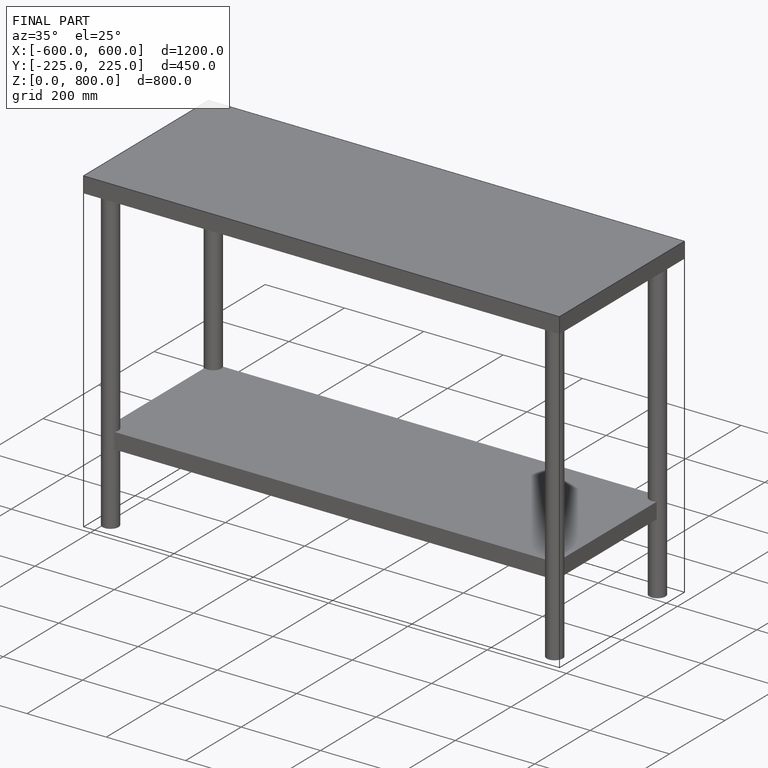
[diagram: finished part — iso view with bounding-box wireframe]
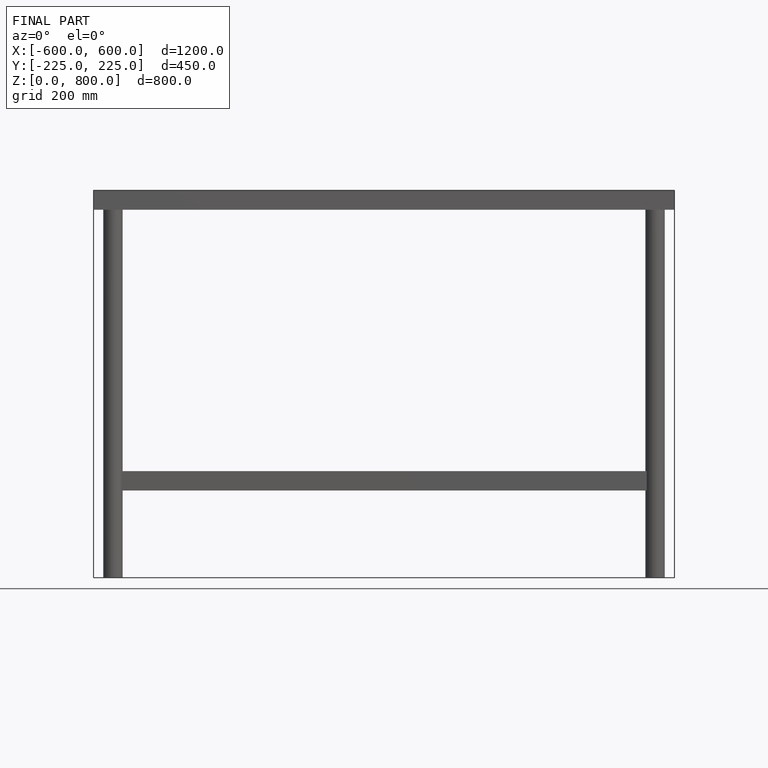
[diagram: finished part — front view with bounding-box wireframe]
